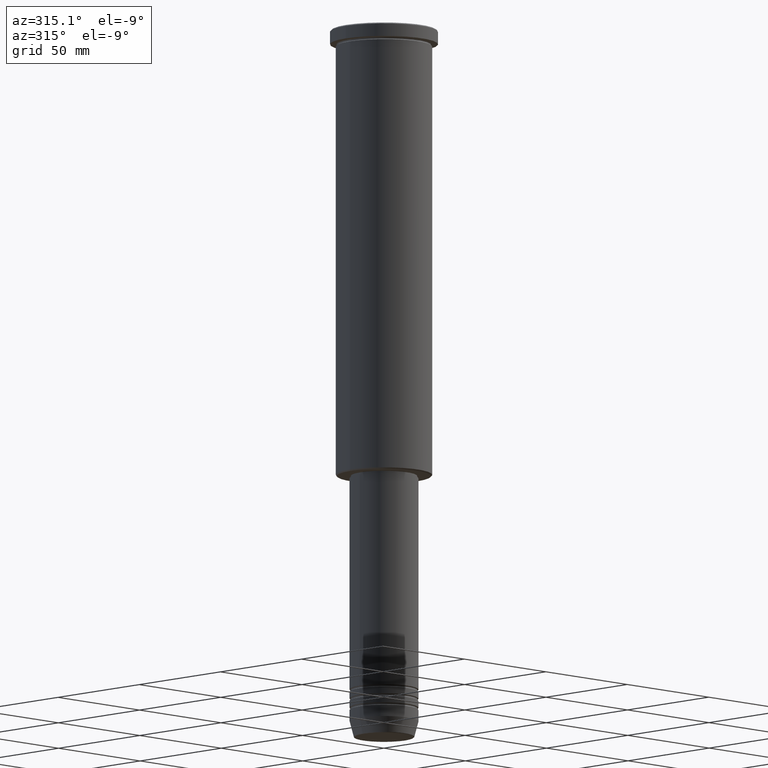
[diagram: clean part render]
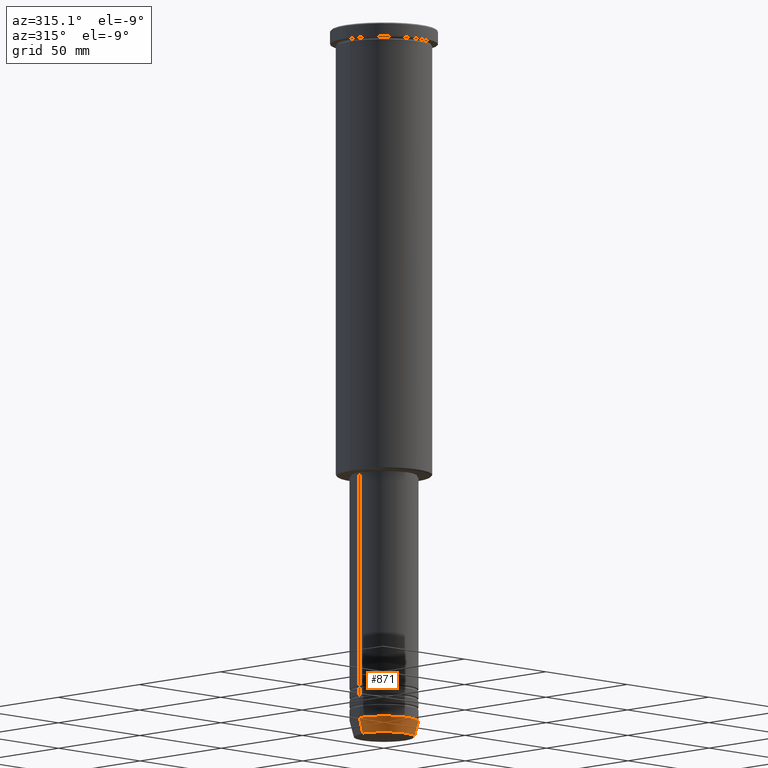
[diagram: same view with one face highlighted and labeled with its STEP entity id]
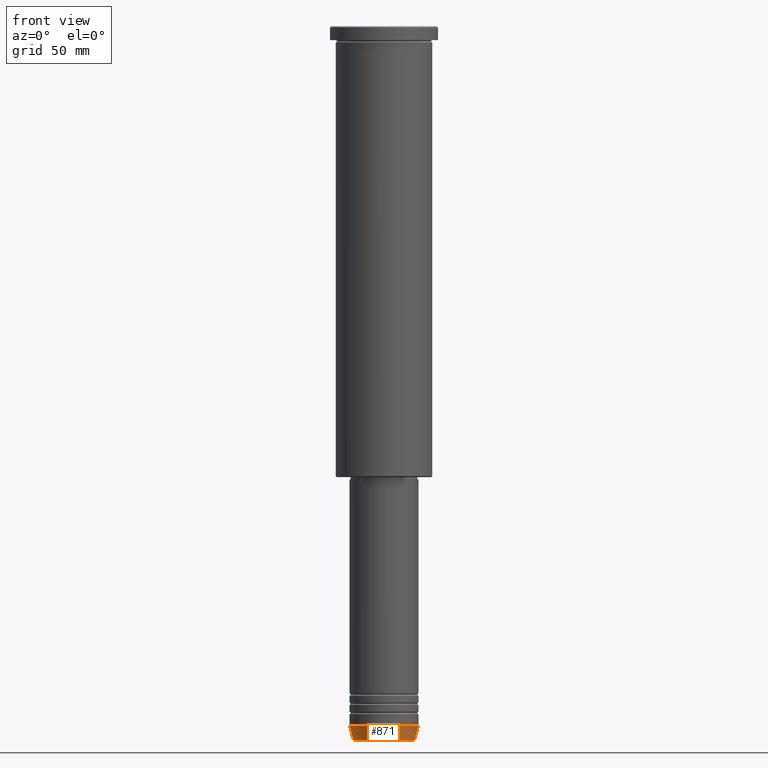
[diagram: same view with one face highlighted and labeled with its STEP entity id]
A machine part, auxiliary view. The second image highlights one B-rep face of the part: STEP entity #871.
A second angle (front view) of the same face is appended — the face is thin or edge-on in the first view.
In plain terms, the highlighted conical surface has half-angle 15 deg.
Its self-contained STEP definition (entity closure, byte-faithful):
#4 = ORIENTED_EDGE ( 'NONE', *, *, #230, .F. ) ;
#39 = VERTEX_POINT ( 'NONE', #1050 ) ;
#63 = DIRECTION ( 'NONE',  ( -0.000000000000000000, -0.000000000000000000, 1.000000000000000000 ) ) ;
#68 = VECTOR ( 'NONE', #1044, 1000.000000000000000 ) ;
#75 = AXIS2_PLACEMENT_3D ( 'NONE', #1165, #63, #815 ) ;
#94 = VERTEX_POINT ( 'NONE', #333 ) ;
#125 = CIRCLE ( 'NONE', #75, 15.00000000000000000 ) ;
#132 = LINE ( 'NONE', #497, #68 ) ;
#230 = EDGE_CURVE ( 'NONE', #742, #94, #125, .T. ) ;
#240 = ORIENTED_EDGE ( 'NONE', *, *, #852, .F. ) ;
#259 = LINE ( 'NONE', #629, #916 ) ;
#263 = CIRCLE ( 'NONE', #607, 13.22365507213718772 ) ;
#333 = CARTESIAN_POINT ( 'NONE',  ( 15.00000000000000000, 0.000000000000000000, -304.0000000000000000 ) ) ;
#380 = DIRECTION ( 'NONE',  ( -0.000000000000000000, -0.000000000000000000, 1.000000000000000000 ) ) ;
#393 = CONICAL_SURFACE ( 'NONE', #1063, 15.00000000000000000, 0.2617993877991500740 ) ;
#399 = ORIENTED_EDGE ( 'NONE', *, *, #560, .T. ) ;
#460 = ORIENTED_EDGE ( 'NONE', *, *, #721, .T. ) ;
#495 = VERTEX_POINT ( 'NONE', #1178 ) ;
#497 = CARTESIAN_POINT ( 'NONE',  ( 15.00000000000000000, 0.000000000000000000, -304.0000000000000000 ) ) ;
#526 = DIRECTION ( 'NONE',  ( 1.000000000000000000, 0.000000000000000000, 0.000000000000000000 ) ) ;
#560 = EDGE_CURVE ( 'NONE', #495, #39, #263, .T. ) ;
#607 = AXIS2_PLACEMENT_3D ( 'NONE', #837, #380, #746 ) ;
#629 = CARTESIAN_POINT ( 'NONE',  ( -15.00000000000000000, 1.836970198721029589E-15, -304.0000000000000000 ) ) ;
#638 = CARTESIAN_POINT ( 'NONE',  ( 0.000000000000000000, 0.000000000000000000, -304.0000000000000000 ) ) ;
#706 = DIRECTION ( 'NONE',  ( -0.2588190451025213501, 3.169619151431772337E-17, 0.9659258262890680902 ) ) ;
#721 = EDGE_CURVE ( 'NONE', #39, #94, #132, .T. ) ;
#742 = VERTEX_POINT ( 'NONE', #859 ) ;
#746 = DIRECTION ( 'NONE',  ( 1.000000000000000000, 0.000000000000000000, 0.000000000000000000 ) ) ;
#815 = DIRECTION ( 'NONE',  ( 1.000000000000000000, 0.000000000000000000, 0.000000000000000000 ) ) ;
#837 = CARTESIAN_POINT ( 'NONE',  ( 0.000000000000000000, 0.000000000000000000, -310.6294095225513274 ) ) ;
#852 = EDGE_CURVE ( 'NONE', #495, #742, #259, .T. ) ;
#859 = CARTESIAN_POINT ( 'NONE',  ( -15.00000000000000000, 1.836970198721029589E-15, -304.0000000000000000 ) ) ;
#864 = EDGE_LOOP ( 'NONE', ( #240, #399, #460, #4 ) ) ;
#871 = ADVANCED_FACE ( 'NONE', ( #980 ), #393, .T. ) ;
#916 = VECTOR ( 'NONE', #706, 1000.000000000000000 ) ;
#980 = FACE_OUTER_BOUND ( 'NONE', #864, .T. ) ;
#1044 = DIRECTION ( 'NONE',  ( 0.2588190451025213501, 0.000000000000000000, 0.9659258262890680902 ) ) ;
#1050 = CARTESIAN_POINT ( 'NONE',  ( 13.22365507213718772, 0.000000000000000000, -310.6294095225513274 ) ) ;
#1063 = AXIS2_PLACEMENT_3D ( 'NONE', #638, #1083, #526 ) ;
#1083 = DIRECTION ( 'NONE',  ( -0.000000000000000000, -0.000000000000000000, 1.000000000000000000 ) ) ;
#1165 = CARTESIAN_POINT ( 'NONE',  ( 0.000000000000000000, 0.000000000000000000, -304.0000000000000000 ) ) ;
#1178 = CARTESIAN_POINT ( 'NONE',  ( -13.22365507213718772, 1.728200442216588386E-15, -310.6294095225513274 ) ) ;